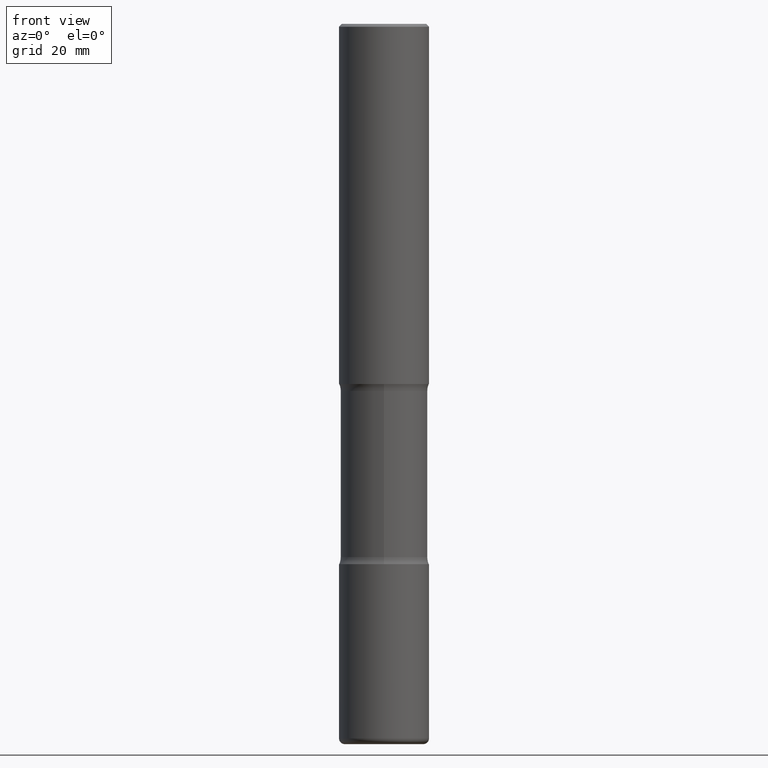
[diagram: clean part render]
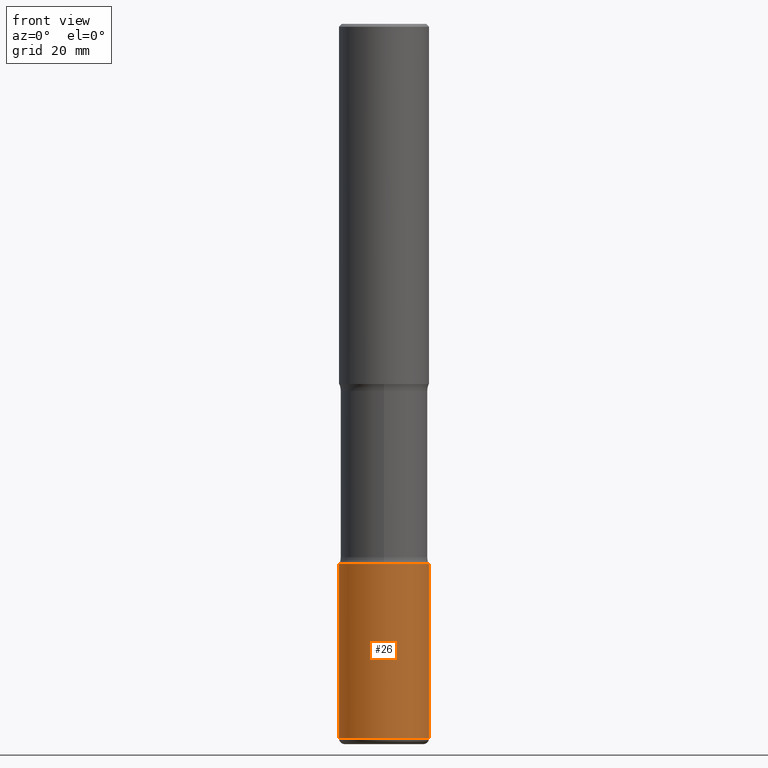
[diagram: same view with one face highlighted and labeled with its STEP entity id]
A machine part, front view. The second image highlights one B-rep face of the part: STEP entity #26.
In plain terms, the highlighted cylindrical surface (partial cylindrical patch) has radius 7.9375 mm, axis along (-0, 0, 1).
Its self-contained STEP definition (entity closure, byte-faithful):
#19 = DIRECTION ( 'NONE',  ( -2.445468806185136597E-29, 3.491481338843145583E-15, 1.000000000000000000 ) ) ;
#26 = ADVANCED_FACE ( 'NONE', ( #43 ), #344, .T. ) ;
#37 = DIRECTION ( 'NONE',  ( -2.445468806185136597E-29, 3.491481338843145583E-15, 1.000000000000000000 ) ) ;
#43 = FACE_OUTER_BOUND ( 'NONE', #454, .T. ) ;
#61 = CARTESIAN_POINT ( 'NONE',  ( 1.212952527867828129E-28, -1.731774744066200960E-14, -4.960000000000001741 ) ) ;
#67 = CARTESIAN_POINT ( 'NONE',  ( -0.3125000000000002776, -1.298495518141158727E-14, -3.750000000000000888 ) ) ;
#75 = AXIS2_PLACEMENT_3D ( 'NONE', #144, #445, #369 ) ;
#107 = VERTEX_POINT ( 'NONE', #528 ) ;
#129 = CARTESIAN_POINT ( 'NONE',  ( 0.000000000000000000, 0.000000000000000000, 0.000000000000000000 ) ) ;
#144 = CARTESIAN_POINT ( 'NONE',  ( 9.170508023194263359E-29, -1.309305502066179899E-14, -3.750000000000000888 ) ) ;
#159 = ORIENTED_EDGE ( 'NONE', *, *, #338, .F. ) ;
#169 = CARTESIAN_POINT ( 'NONE',  ( 0.3125000000000002776, -1.527523085743876049E-14, -3.750000000000000888 ) ) ;
#175 = LINE ( 'NONE', #321, #532 ) ;
#188 = EDGE_CURVE ( 'NONE', #541, #423, #175, .T. ) ;
#192 = DIRECTION ( 'NONE',  ( 1.000000000000000000, -6.982962677686268288E-15, 0.000000000000000000 ) ) ;
#199 = ORIENTED_EDGE ( 'NONE', *, *, #275, .F. ) ;
#238 = DIRECTION ( 'NONE',  ( -2.445468806185136877E-29, 3.491481338843145188E-15, 1.000000000000000000 ) ) ;
#266 = VECTOR ( 'NONE', #361, 39.37007874015748143 ) ;
#275 = EDGE_CURVE ( 'NONE', #296, #423, #396, .T. ) ;
#284 = AXIS2_PLACEMENT_3D ( 'NONE', #61, #19, #192 ) ;
#296 = VERTEX_POINT ( 'NONE', #67 ) ;
#321 = CARTESIAN_POINT ( 'NONE',  ( 0.3125000000000002776, -2.182175836776960319E-15, 1.523805242436231477E-29 ) ) ;
#329 = CARTESIAN_POINT ( 'NONE',  ( 0.3125000000000000000, -1.949992327743896952E-14, -4.960000000000001741 ) ) ;
#338 = EDGE_CURVE ( 'NONE', #107, #296, #367, .T. ) ;
#344 = CYLINDRICAL_SURFACE ( 'NONE', #523, 0.3125000000000002776 ) ;
#350 = EDGE_CURVE ( 'NONE', #107, #541, #415, .T. ) ;
#361 = DIRECTION ( 'NONE',  ( -2.445468806185136877E-29, 3.491481338843145188E-15, 1.000000000000000000 ) ) ;
#367 = LINE ( 'NONE', #451, #266 ) ;
#369 = DIRECTION ( 'NONE',  ( 1.000000000000000000, -6.982962677686269077E-15, 0.000000000000000000 ) ) ;
#396 = CIRCLE ( 'NONE', #75, 0.3125000000000002776 ) ;
#415 = CIRCLE ( 'NONE', #284, 0.3125000000000003331 ) ;
#423 = VERTEX_POINT ( 'NONE', #169 ) ;
#445 = DIRECTION ( 'NONE',  ( -2.445468806185136597E-29, 3.491481338843145583E-15, 1.000000000000000000 ) ) ;
#451 = CARTESIAN_POINT ( 'NONE',  ( -0.3125000000000002776, 2.220446049250315053E-15, -1.537167215704659353E-29 ) ) ;
#454 = EDGE_LOOP ( 'NONE', ( #159, #493, #538, #199 ) ) ;
#473 = DIRECTION ( 'NONE',  ( 1.000000000000000000, -6.982962677686266711E-15, 4.876176775795936353E-29 ) ) ;
#493 = ORIENTED_EDGE ( 'NONE', *, *, #350, .T. ) ;
#523 = AXIS2_PLACEMENT_3D ( 'NONE', #129, #37, #473 ) ;
#528 = CARTESIAN_POINT ( 'NONE',  ( -0.3125000000000000000, -1.509730139141169652E-14, -4.960000000000001741 ) ) ;
#532 = VECTOR ( 'NONE', #238, 39.37007874015748143 ) ;
#538 = ORIENTED_EDGE ( 'NONE', *, *, #188, .T. ) ;
#541 = VERTEX_POINT ( 'NONE', #329 ) ;